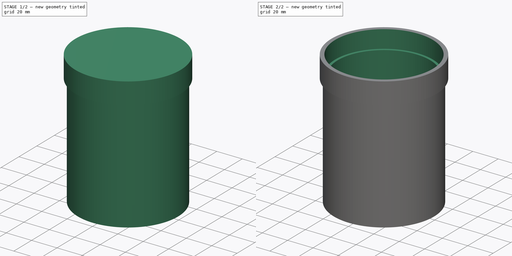
[diagram: build sequence overview — one tinted view per stage of 2, left to right]
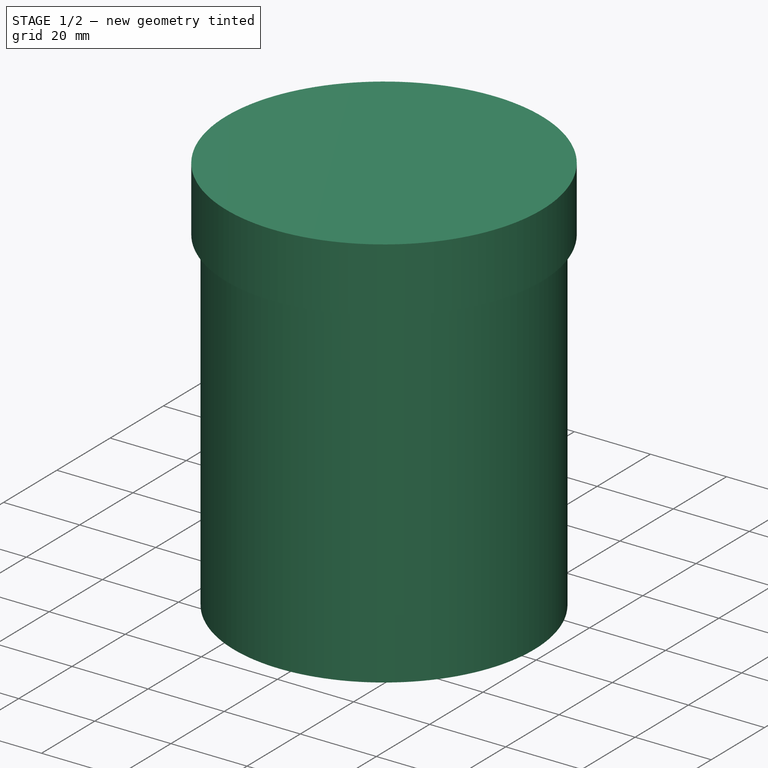
[diagram: stage 1 of 2 — iso view after this stage's code; geometry added in this stage tinted green]
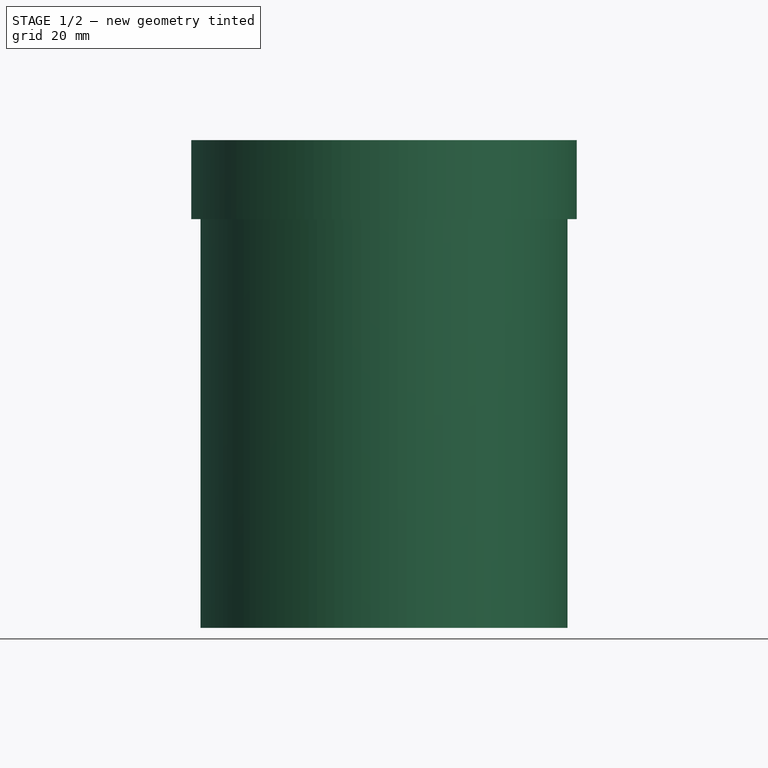
[diagram: stage 1 of 2 — front view after this stage's code; geometry added in this stage tinted green]
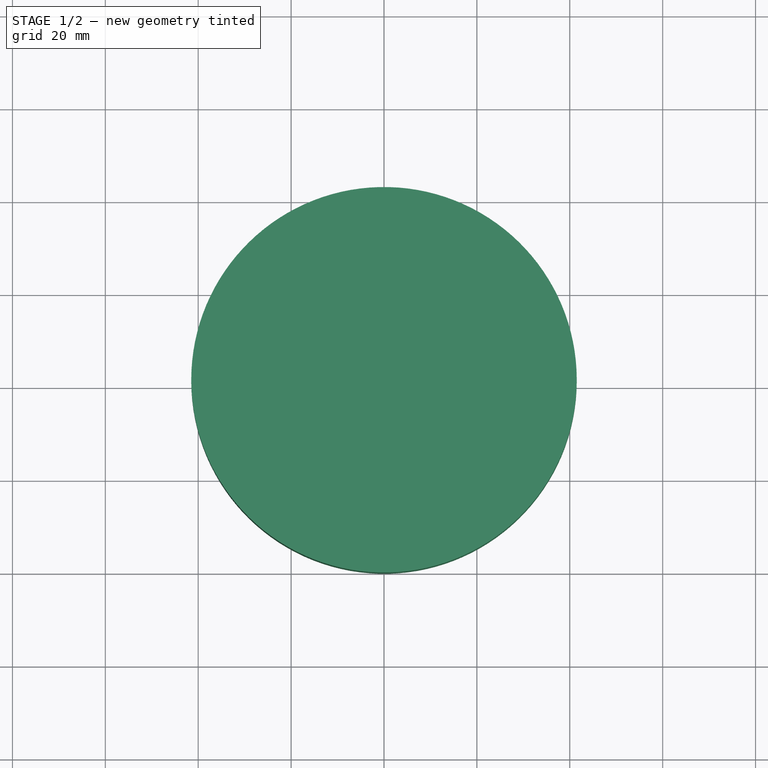
[diagram: stage 1 of 2 — top view after this stage's code; geometry added in this stage tinted green]
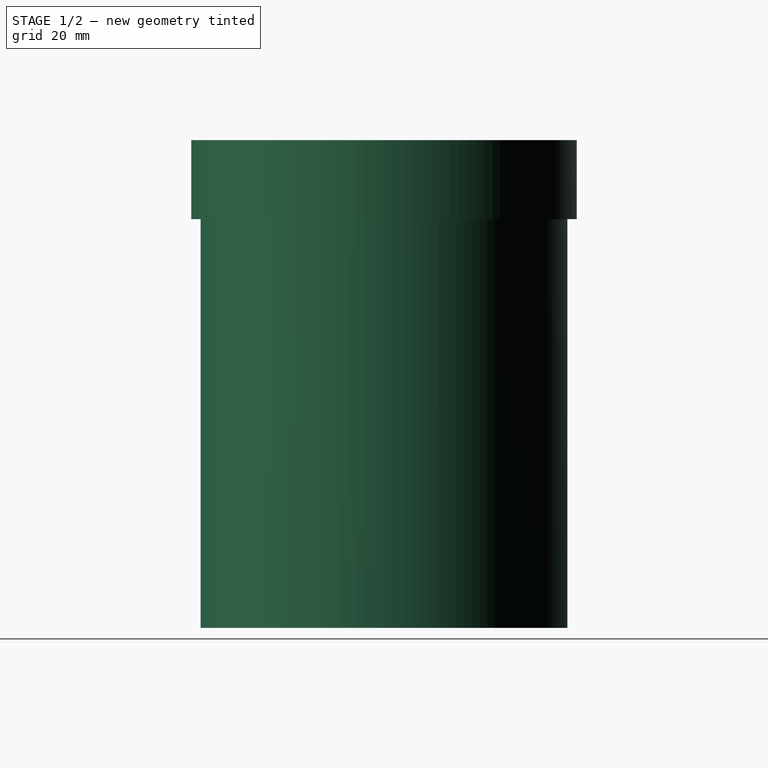
[diagram: stage 1 of 2 — right view after this stage's code; geometry added in this stage tinted green]
FCSTD DOCUMENT  (FreeCAD 0.18.4R)
Label: cup-body-straight
License: All rights reserved
LicenseURL: http://en.wikipedia.org/wiki/All_rights_reserved
objects: Sketcher::SketchObject×1, PartDesign::Revolution×1, PartDesign::Thickness×1, PartDesign::Body×1
note: 5 computed .brp shape members not serialized (recipe doc carries the construction recipe); baked Part::Feature solids carry a one-line shape summary decoded from their .brp

FEATURE [Sketcher::SketchObject] Sketch
  MapMode = 5
  Placement = pos=(0,0,0) rot=(1,0,0;1.5708rad)
  Support = -> [XZ_Plane]
  sketch-geometry (6):
    g0: LineSegment StartX=0 StartY=0 StartZ=0 EndX=-39.5 EndY=0 EndZ=0
    g1: LineSegment StartX=-39.5 StartY=0 StartZ=0 EndX=-39.5 EndY=88 EndZ=0
    g2: LineSegment StartX=-39.5 StartY=88 StartZ=0 EndX=-41.5 EndY=88 EndZ=0
    g3: LineSegment StartX=-41.5 StartY=88 StartZ=0 EndX=-41.5 EndY=105 EndZ=0
    g4: LineSegment StartX=-41.5 StartY=105 StartZ=0 EndX=0 EndY=105 EndZ=0
    g5: LineSegment StartX=0 StartY=105 StartZ=0 EndX=0 EndY=0 EndZ=0
  constraints (17):
    c: Coincident(g-1,g0)
    c: Coincident(g1,g2)
    c: Horizontal(g2)
    c: Coincident(g2,g3)
    c: Coincident(g3,g4)
    c: Horizontal(g4)
    c: Coincident(g4,g5)
    c: Coincident(g5,g0)
    c: Vertical(g5)
    c: DistanceX(g4,g4) = 41.5
    c: DistanceX(g2,g2) = 2
    c: DistanceY(g5,g5) = 105
    c: Distance(g3) = 17
    c: Vertical(g3)
    c: Vertical(g1)
    c: PointOnObject(g1,g-1)
    c: Coincident(g0,g1)
FEATURE [PartDesign::Revolution] Revolution
  Angle = 360
  Axis = (0,-2e-16,1)
  Base = (0,0,0)
  Placement = pos=(0,0,0) rot=(1,0,0;1.5708rad)
  Profile = -> Sketch
  ReferenceAxis = -> Sketch [V_Axis]
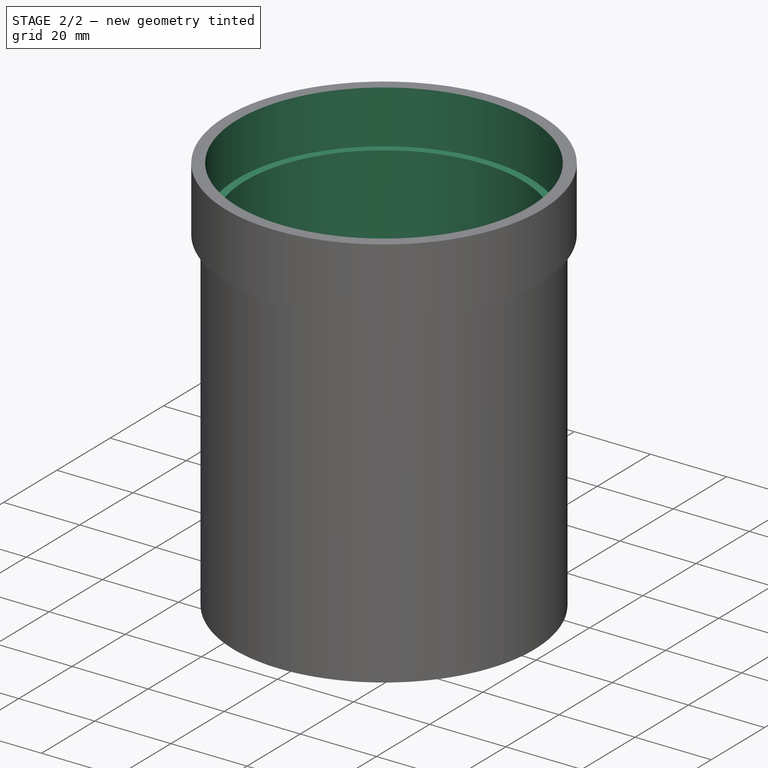
[diagram: stage 2 of 2 — iso view after this stage's code; geometry added in this stage tinted green]
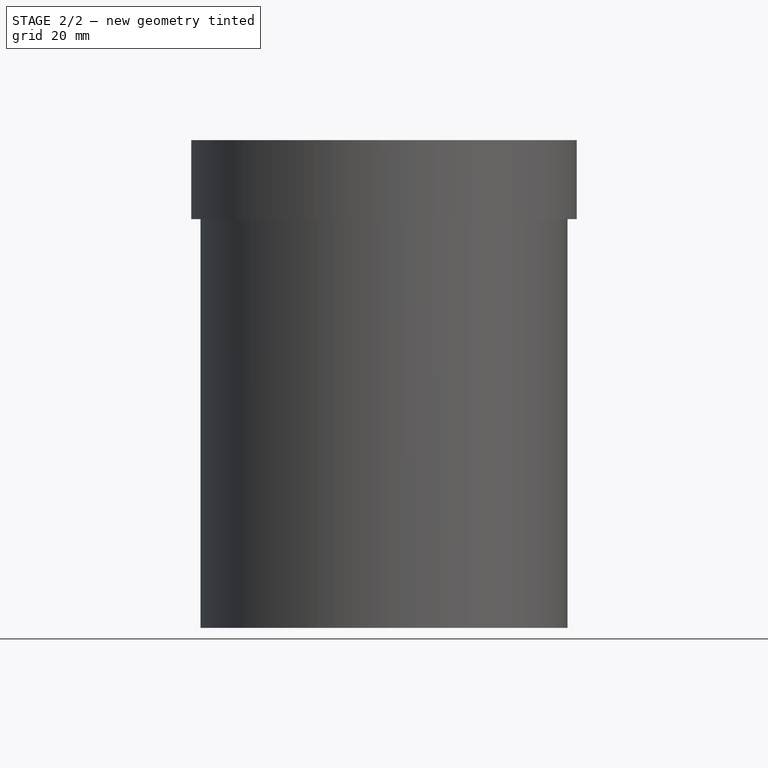
[diagram: stage 2 of 2 — front view after this stage's code; geometry added in this stage tinted green]
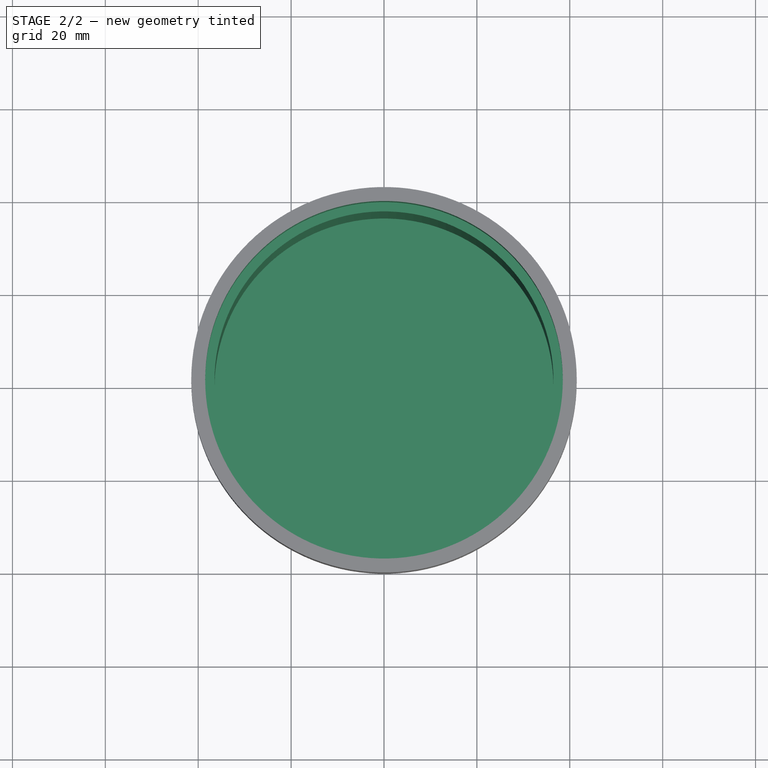
[diagram: stage 2 of 2 — top view after this stage's code; geometry added in this stage tinted green]
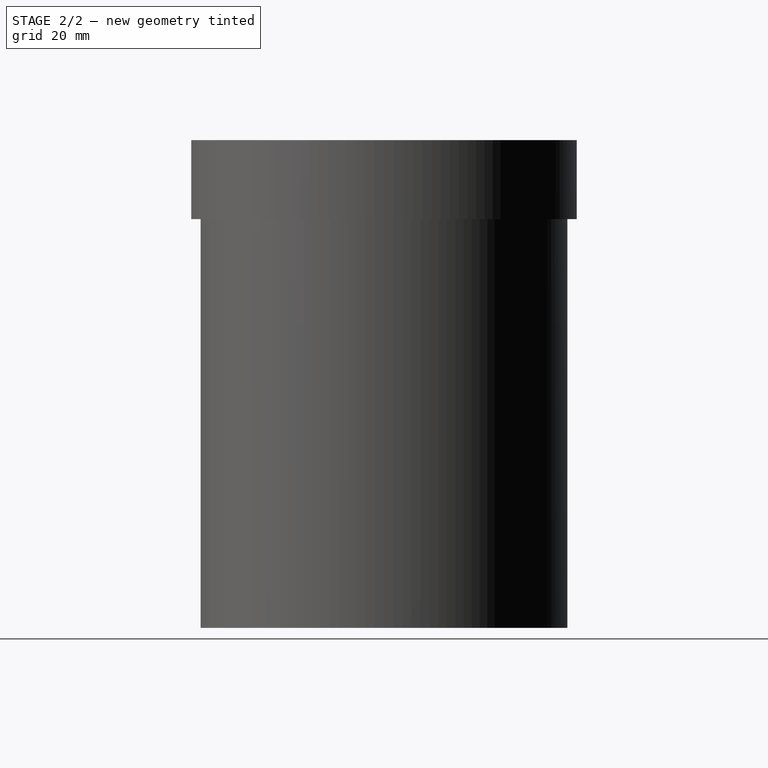
[diagram: stage 2 of 2 — right view after this stage's code; geometry added in this stage tinted green]
FEATURE [PartDesign::Thickness] Thickness
  Base = -> Revolution [Face5]
  BaseFeature = -> Revolution
  Join = 1
  Mode = 0
  Reversed = true
  Value = 3
FEATURE [PartDesign::Body] Body
  Group = -> [Sketch,Revolution,Thickness]
  Origin = -> Origin
  Tip = -> Thickness
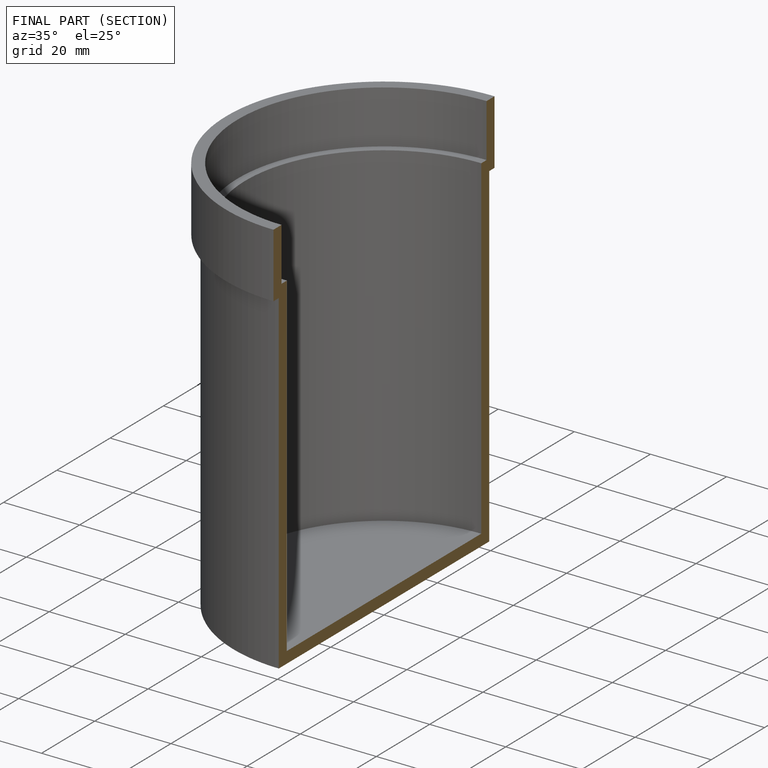
[diagram: finished part — half-section view (interior)]
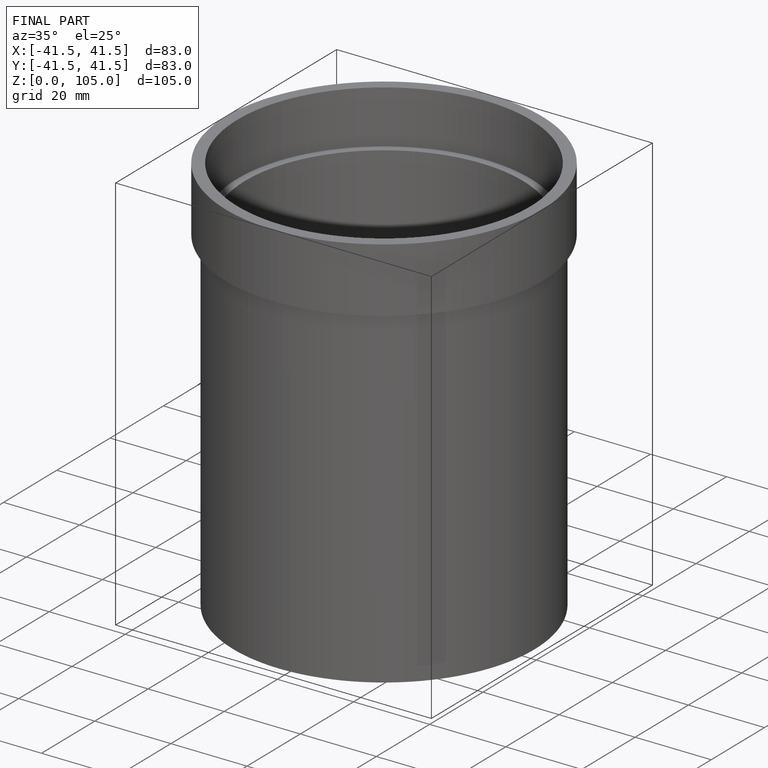
[diagram: finished part — iso view with bounding-box wireframe]
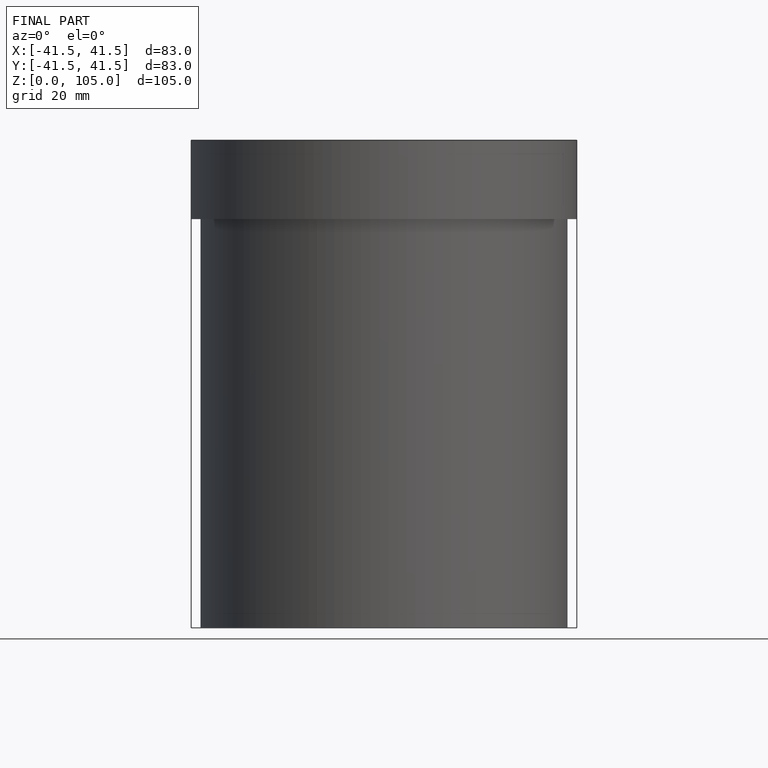
[diagram: finished part — front view with bounding-box wireframe]
